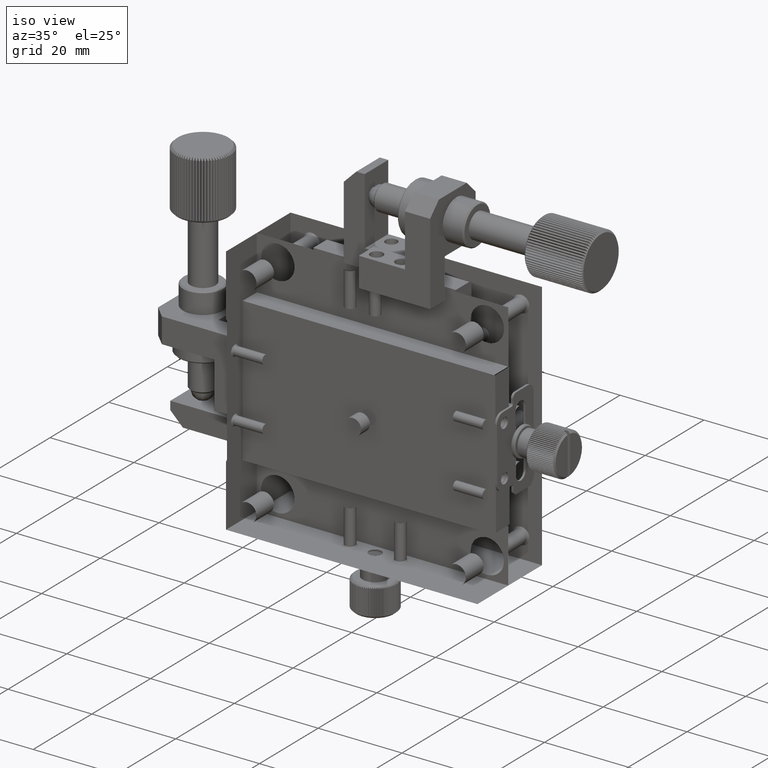
[diagram: clean part render]
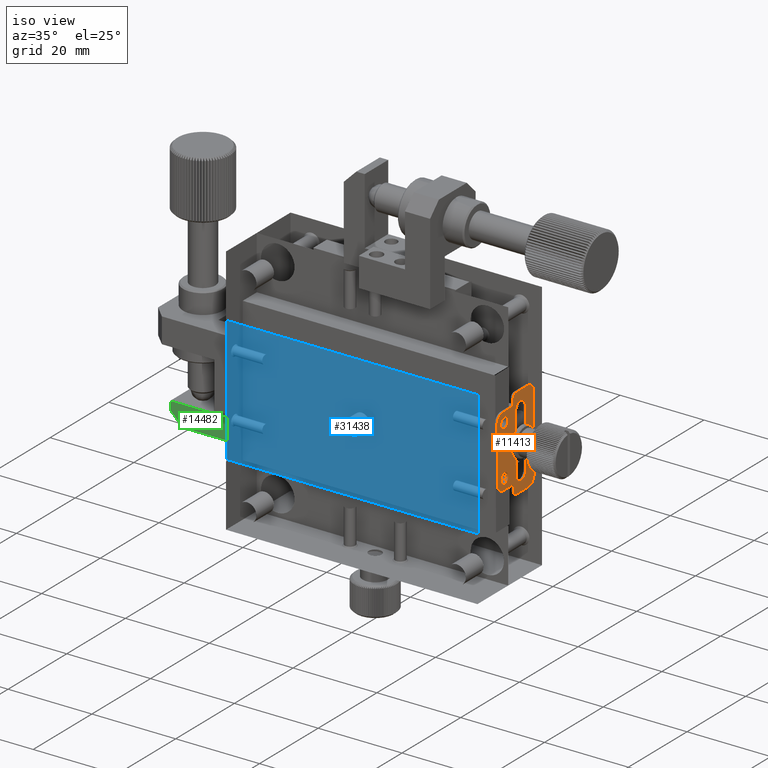
[diagram: same view with three faces highlighted in distinct colors, each labeled with its STEP entity id]
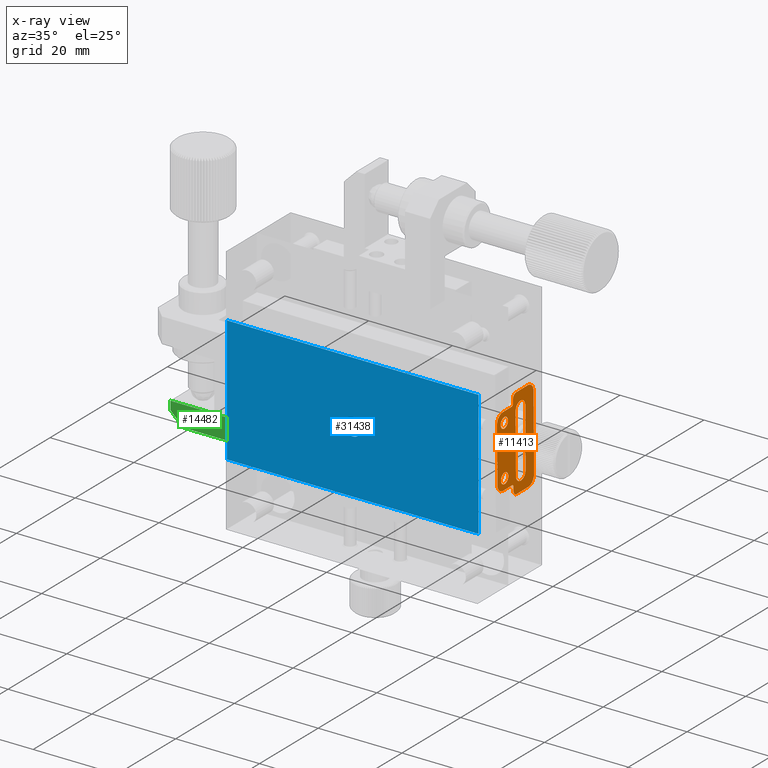
[diagram: x-ray of the same camera — body ghosted, the three highlighted faces saturated]
A machine part, iso view with three faces highlighted in distinct colors.
The next image is the same camera in x-ray (body ghosted, the three faces saturated) — at least one of them is partly hidden behind the body in this view.
Their STEP definitions:

[orange] entity #11413 — the highlighted planar face has unit normal (1, -0, -0).
#90 = ORIENTED_EDGE ( 'NONE', *, *, #26227, .T. ) ;
#845 = DIRECTION ( 'NONE',  ( -1.000000000000000000, 1.816457059502865231E-17, 6.808534262941342127E-17 ) ) ;
#1749 = CARTESIAN_POINT ( 'NONE',  ( 30.50000000000000355, 12.58622128862589484, -9.965078804525512979 ) ) ;
#2050 = CIRCLE ( 'NONE', #32281, 0.4999999999998339106 ) ;
#2134 = DIRECTION ( 'NONE',  ( 0.000000000000000000, 0.008637048863370190913, -0.9999626999978207254 ) ) ;
#2270 = VERTEX_POINT ( 'NONE', #34601 ) ;
#2402 = CARTESIAN_POINT ( 'NONE',  ( 30.50000000000000711, 12.41031573556359469, -6.966486091467329445 ) ) ;
#2682 = DIRECTION ( 'NONE',  ( 0.000000000000000000, -0.9999626999978207254, -0.008637048863370194382 ) ) ;
#2855 = FACE_BOUND ( 'NONE', #9845, .T. ) ;
#3090 = DIRECTION ( 'NONE',  ( 1.000000000000000000, -1.816457059502865231E-17, -6.808534262941342127E-17 ) ) ;
#3307 = ORIENTED_EDGE ( 'NONE', *, *, #37519, .T. ) ;
#3731 = AXIS2_PLACEMENT_3D ( 'NONE', #11486, #845, #36667 ) ;
#4194 = CARTESIAN_POINT ( 'NONE',  ( 30.50000000000000711, 16.59470913748010901, -10.93049330907007644 ) ) ;
#4420 = DIRECTION ( 'NONE',  ( -1.000000000000000000, 1.816457059502865231E-17, 6.808534262941342127E-17 ) ) ;
#4422 = CARTESIAN_POINT ( 'NONE',  ( 30.50000000000000711, 16.42196816021226624, 9.068760690886023212 ) ) ;
#4445 = VECTOR ( 'NONE', #2682, 1000.000000000000114 ) ;
#5302 = ORIENTED_EDGE ( 'NONE', *, *, #36138, .T. ) ;
#5486 = ORIENTED_EDGE ( 'NONE', *, *, #30139, .T. ) ;
#5492 = DIRECTION ( 'NONE',  ( 0.000000000000000000, 0.008637048863370251628, -0.9999626999978207254 ) ) ;
#5732 = CARTESIAN_POINT ( 'NONE',  ( 30.50000000000000711, 11.42215466022337367, 9.025575446569840565 ) ) ;
#5819 = VERTEX_POINT ( 'NONE', #30817 ) ;
#6158 = AXIS2_PLACEMENT_3D ( 'NONE', #1749, #25548, #7997 ) ;
#6611 = LINE ( 'NONE', #31348, #32526 ) ;
#7997 = DIRECTION ( 'NONE',  ( 0.000000000000000000, 1.734723475976420355E-15, 1.000000000000000000 ) ) ;
#8345 = DIRECTION ( 'NONE',  ( 0.000000000000000000, -0.008637048863370230811, 0.9999626999978207254 ) ) ;
#8366 = VERTEX_POINT ( 'NONE', #28128 ) ;
#8460 = AXIS2_PLACEMENT_3D ( 'NONE', #15774, #18548, #43718 ) ;
#8674 = VERTEX_POINT ( 'NONE', #12190 ) ;
#8739 = CARTESIAN_POINT ( 'NONE',  ( 30.50000000000000711, 8.551822293180237011, -5.999776199987381098 ) ) ;
#8886 = CIRCLE ( 'NONE', #39129, 2.000000000000334843 ) ;
#9090 = DIRECTION ( 'NONE',  ( -6.808534262941342127E-17, 0.000000000000000000, -1.000000000000000000 ) ) ;
#9286 = CARTESIAN_POINT ( 'NONE',  ( 30.50000000000000711, 15.58927396441171531, 7.061493629064314881 ) ) ;
#9530 = EDGE_CURVE ( 'NONE', #24378, #16242, #23838, .T. ) ;
#9845 = EDGE_LOOP ( 'NONE', ( #45123 ) ) ;
#9929 = EDGE_CURVE ( 'NONE', #16242, #23678, #32663, .T. ) ;
#10965 = CARTESIAN_POINT ( 'NONE',  ( 30.50000000000000711, 16.40469406248552175, 11.06868609088200017 ) ) ;
#11413 = ADVANCED_FACE ( 'NONE', ( #2855, #30803, #41205, #30123 ), #26642, .T. ) ;
#11453 = AXIS2_PLACEMENT_3D ( 'NONE', #28910, #4420, #19200 ) ;
#11478 = CIRCLE ( 'NONE', #26209, 1.999999999999890754 ) ;
#11486 = CARTESIAN_POINT ( 'NONE',  ( 30.50000000000000711, 8.448177706819791410, 5.999776199986929015 ) ) ;
#11836 = LINE ( 'NONE', #18295, #14589 ) ;
#12178 = CARTESIAN_POINT ( 'NONE',  ( 30.50000000000000711, 12.59485833748904682, -10.96504150452355653 ) ) ;
#12190 = CARTESIAN_POINT ( 'NONE',  ( 30.50000000000000711, 15.71019264555625838, -6.937983830218209746 ) ) ;
#12234 = ORIENTED_EDGE ( 'NONE', *, *, #20041, .T. ) ;
#12560 = EDGE_CURVE ( 'NONE', #35962, #5819, #37265, .T. ) ;
#12799 = CARTESIAN_POINT ( 'NONE',  ( 30.50000000000000711, 11.07764018976573794, -8.978071677822855534 ) ) ;
#12850 = CARTESIAN_POINT ( 'NONE',  ( 30.50000000000000711, 10.92649183465631602, 8.521275572138971910 ) ) ;
#12931 = DIRECTION ( 'NONE',  ( -1.000000000000000000, 1.816457059502865231E-17, 6.808534262941342127E-17 ) ) ;
#13658 = CIRCLE ( 'NONE', #11453, 1.649999999999929301 ) ;
#13825 = VERTEX_POINT ( 'NONE', #42337 ) ;
#14037 = CARTESIAN_POINT ( 'NONE',  ( 30.50000000000000711, 10.92649183465631602, 8.521275572138970134 ) ) ;
#14051 = VECTOR ( 'NONE', #16502, 1000.000000000000114 ) ;
#14127 = EDGE_CURVE ( 'NONE', #5819, #13825, #32295, .T. ) ;
#14589 = VECTOR ( 'NONE', #8345, 1000.000000000000114 ) ;
#14689 = ORIENTED_EDGE ( 'NONE', *, *, #40834, .T. ) ;
#14846 = CARTESIAN_POINT ( 'NONE',  ( 30.50000000000000711, 7.943877832389478755, 6.495439025553325862 ) ) ;
#15021 = DIRECTION ( 'NONE',  ( -1.000000000000000000, 1.816457059502865231E-17, 6.808534262941342127E-17 ) ) ;
#15030 = VECTOR ( 'NONE', #15562, 1000.000000000000114 ) ;
#15176 = CARTESIAN_POINT ( 'NONE',  ( 30.50000000000000711, 15.58927396441171531, 7.061493629064314881 ) ) ;
#15211 = EDGE_CURVE ( 'NONE', #40424, #41814, #44101, .T. ) ;
#15275 = EDGE_CURVE ( 'NONE', #20610, #8674, #30534, .T. ) ;
#15382 = CARTESIAN_POINT ( 'NONE',  ( 30.50000000000000711, 5.943952432393946772, 6.478164927826585817 ) ) ;
#15469 = LINE ( 'NONE', #36738, #16282 ) ;
#15562 = DIRECTION ( 'NONE',  ( 0.000000000000000000, 0.9999626999978207254, 0.008637048863370518775 ) ) ;
#15774 = CARTESIAN_POINT ( 'NONE',  ( 30.50000000000000711, 8.056159467613735359, -6.504076074418245312 ) ) ;
#16242 = VERTEX_POINT ( 'NONE', #12178 ) ;
#16282 = VECTOR ( 'NONE', #22157, 1000.000000000000114 ) ;
#16502 = DIRECTION ( 'NONE',  ( 0.000000000000000000, -0.008637048863370314078, 0.9999626999978207254 ) ) ;
#16601 = ORIENTED_EDGE ( 'NONE', *, *, #32642, .T. ) ;
#16999 = AXIS2_PLACEMENT_3D ( 'NONE', #32814, #15021, #19162 ) ;
#17098 = VERTEX_POINT ( 'NONE', #14037 ) ;
#17262 = CARTESIAN_POINT ( 'NONE',  ( 30.50000000000000711, 12.28939705441904984, 7.032991367815193406 ) ) ;
#17927 = DIRECTION ( 'NONE',  ( 0.000000000000000000, 0.000000000000000000, 1.000000000000000000 ) ) ;
#18295 = CARTESIAN_POINT ( 'NONE',  ( 30.50000000000000711, 18.57736043974890450, -8.913293811347806184 ) ) ;
#18487 = ORIENTED_EDGE ( 'NONE', *, *, #36013, .T. ) ;
#18548 = DIRECTION ( 'NONE',  ( 1.000000000000000000, -1.816457059502865231E-17, -6.808534262941342127E-17 ) ) ;
#18830 = VERTEX_POINT ( 'NONE', #36997 ) ;
#19162 = DIRECTION ( 'NONE',  ( 0.000000000000000000, 0.000000000000000000, 1.000000000000000000 ) ) ;
#19200 = DIRECTION ( 'NONE',  ( 0.000000000000000000, 0.000000000000000000, 1.000000000000000000 ) ) ;
#19304 = CARTESIAN_POINT ( 'NONE',  ( 30.50000000000000711, 11.57762153976448261, -8.973753153391170301 ) ) ;
#20041 = EDGE_CURVE ( 'NONE', #41814, #35962, #40620, .T. ) ;
#20444 = EDGE_LOOP ( 'NONE', ( #42812, #27244, #43902, #28778, #21122, #28211, #45199, #42252, #21217, #14689, #31384, #40173, #90, #5302, #36931, #12234 ) ) ;
#20610 = VERTEX_POINT ( 'NONE', #15176 ) ;
#20648 = DIRECTION ( 'NONE',  ( 0.000000000000000000, 0.000000000000000000, 1.000000000000000000 ) ) ;
#20947 = DIRECTION ( 'NONE',  ( 0.000000000000000000, -0.9999626999978207254, -0.008637048863369642740 ) ) ;
#21122 = ORIENTED_EDGE ( 'NONE', *, *, #9530, .T. ) ;
#21217 = ORIENTED_EDGE ( 'NONE', *, *, #44740, .T. ) ;
#22157 = DIRECTION ( 'NONE',  ( 0.000000000000000000, 0.008637048863371823287, -0.9999626999978207254 ) ) ;
#22322 = CARTESIAN_POINT ( 'NONE',  ( 30.50000000000000711, 6.056234067617759287, -6.521350172144989799 ) ) ;
#23244 = AXIS2_PLACEMENT_3D ( 'NONE', #12799, #40750, #9090 ) ;
#23272 = CARTESIAN_POINT ( 'NONE',  ( 30.50000000000000711, 12.41348031135760444, 10.03417519543092062 ) ) ;
#23678 = VERTEX_POINT ( 'NONE', #4194 ) ;
#23838 = CIRCLE ( 'NONE', #6158, 1.000000000000222933 ) ;
#24297 = EDGE_CURVE ( 'NONE', #23678, #18830, #11478, .T. ) ;
#24378 = VERTEX_POINT ( 'NONE', #36862 ) ;
#25548 = DIRECTION ( 'NONE',  ( 1.000000000000000000, -1.816457059502865231E-17, -6.808534262941342127E-17 ) ) ;
#25677 = DIRECTION ( 'NONE',  ( 1.000000000000000000, -1.816457059502865231E-17, -6.808534262941342127E-17 ) ) ;
#25820 = CARTESIAN_POINT ( 'NONE',  ( 30.50000000000000711, 7.926603734662739598, 8.495364425548858733 ) ) ;
#25991 = VERTEX_POINT ( 'NONE', #29335 ) ;
#26209 = AXIS2_PLACEMENT_3D ( 'NONE', #35043, #41955, #17927 ) ;
#26227 = EDGE_CURVE ( 'NONE', #38256, #17098, #2050, .T. ) ;
#26526 = EDGE_CURVE ( 'NONE', #37920, #25991, #42630, .T. ) ;
#26642 = PLANE ( 'NONE',  #23244 ) ;
#27004 = DIRECTION ( 'NONE',  ( 0.000000000000000000, 0.000000000000000000, 1.000000000000000000 ) ) ;
#27079 = VECTOR ( 'NONE', #28134, 1000.000000000000114 ) ;
#27141 = VECTOR ( 'NONE', #2134, 1000.000000000000114 ) ;
#27244 = ORIENTED_EDGE ( 'NONE', *, *, #14127, .T. ) ;
#27398 = VECTOR ( 'NONE', #32959, 1000.000000000000114 ) ;
#28128 = CARTESIAN_POINT ( 'NONE',  ( 30.50000000000000711, 11.57762153976448261, -8.973753153391172077 ) ) ;
#28134 = DIRECTION ( 'NONE',  ( 0.000000000000000000, 0.9999626999978207254, 0.008637048863370194382 ) ) ;
#28211 = ORIENTED_EDGE ( 'NONE', *, *, #9929, .T. ) ;
#28568 = CIRCLE ( 'NONE', #41858, 1.649999999999930189 ) ;
#28778 = ORIENTED_EDGE ( 'NONE', *, *, #38485, .T. ) ;
#28910 = CARTESIAN_POINT ( 'NONE',  ( 30.50000000000000711, 14.06025419055992920, -6.952234960842769596 ) ) ;
#28932 = DIRECTION ( 'NONE',  ( 1.000000000000000000, -1.816457059502865231E-17, -6.808534262941342127E-17 ) ) ;
#29335 = CARTESIAN_POINT ( 'NONE',  ( 30.50000000000000711, 11.41351761136000498, 10.02553814656755016 ) ) ;
#29357 = AXIS2_PLACEMENT_3D ( 'NONE', #14846, #28932, #43014 ) ;
#29527 = DIRECTION ( 'NONE',  ( -1.000000000000000000, 1.816457059502865231E-17, 6.808534262941342127E-17 ) ) ;
#29595 = ORIENTED_EDGE ( 'NONE', *, *, #15275, .T. ) ;
#30123 = FACE_BOUND ( 'NONE', #42261, .T. ) ;
#30139 = EDGE_CURVE ( 'NONE', #8674, #32764, #13658, .T. ) ;
#30534 = LINE ( 'NONE', #9286, #27141 ) ;
#30756 = VECTOR ( 'NONE', #5492, 1000.000000000000114 ) ;
#30803 = FACE_BOUND ( 'NONE', #31398, .T. ) ;
#30817 = CARTESIAN_POINT ( 'NONE',  ( 30.50000000000000711, 8.073433565340478069, -8.504001474414222272 ) ) ;
#30831 = AXIS2_PLACEMENT_3D ( 'NONE', #23272, #3090, #20648 ) ;
#31281 = EDGE_CURVE ( 'NONE', #36936, #36936, #35972, .T. ) ;
#31348 = CARTESIAN_POINT ( 'NONE',  ( 30.50000000000000711, 16.40469406248552175, 11.06868609088200017 ) ) ;
#31384 = ORIENTED_EDGE ( 'NONE', *, *, #26526, .T. ) ;
#31398 = EDGE_LOOP ( 'NONE', ( #29595, #5486, #3307, #16601 ) ) ;
#31468 = VERTEX_POINT ( 'NONE', #17262 ) ;
#31593 = DIRECTION ( 'NONE',  ( 0.000000000000000000, 0.000000000000000000, 1.000000000000000000 ) ) ;
#31714 = VERTEX_POINT ( 'NONE', #38007 ) ;
#31813 = CARTESIAN_POINT ( 'NONE',  ( 30.50000000000000711, 13.93933550941538613, 7.047242498439754144 ) ) ;
#32281 = AXIS2_PLACEMENT_3D ( 'NONE', #44564, #12931, #27004 ) ;
#32295 = LINE ( 'NONE', #36000, #27079 ) ;
#32526 = VECTOR ( 'NONE', #20947, 1000.000000000000114 ) ;
#32642 = EDGE_CURVE ( 'NONE', #31468, #20610, #28568, .T. ) ;
#32663 = LINE ( 'NONE', #32900, #15030 ) ;
#32764 = VERTEX_POINT ( 'NONE', #36200 ) ;
#32814 = CARTESIAN_POINT ( 'NONE',  ( 30.50000000000000711, 11.07764018976573794, -8.978071677822855534 ) ) ;
#32900 = CARTESIAN_POINT ( 'NONE',  ( 30.50000000000000711, 12.59485833748882477, -10.96504150452355830 ) ) ;
#32959 = DIRECTION ( 'NONE',  ( 0.000000000000000000, 0.008637048863371089499, -0.9999626999978207254 ) ) ;
#33230 = DIRECTION ( 'NONE',  ( 0.000000000000000000, 0.000000000000000000, 1.000000000000000000 ) ) ;
#33544 = EDGE_CURVE ( 'NONE', #18830, #31714, #11836, .T. ) ;
#33653 = LINE ( 'NONE', #12850, #4445 ) ;
#34601 = CARTESIAN_POINT ( 'NONE',  ( 30.50000000000000711, 8.448177706819791410, 7.249776199987568504 ) ) ;
#35043 = CARTESIAN_POINT ( 'NONE',  ( 30.50000000000000711, 16.57743503975337163, -8.930567909074543564 ) ) ;
#35435 = CIRCLE ( 'NONE', #16999, 0.4999999999998339106 ) ;
#35780 = EDGE_CURVE ( 'NONE', #13825, #8366, #35435, .T. ) ;
#35962 = VERTEX_POINT ( 'NONE', #22322 ) ;
#35972 = CIRCLE ( 'NONE', #41860, 1.249999999999752198 ) ;
#36000 = CARTESIAN_POINT ( 'NONE',  ( 30.50000000000000711, 8.073433565340478069, -8.504001474414222272 ) ) ;
#36013 = EDGE_CURVE ( 'NONE', #2270, #2270, #36962, .T. ) ;
#36138 = EDGE_CURVE ( 'NONE', #17098, #40424, #33653, .T. ) ;
#36200 = CARTESIAN_POINT ( 'NONE',  ( 30.50000000000000711, 12.41031573556359469, -6.966486091467330333 ) ) ;
#36315 = DIRECTION ( 'NONE',  ( 0.000000000000000000, 0.000000000000000000, 1.000000000000000000 ) ) ;
#36667 = DIRECTION ( 'NONE',  ( 0.000000000000000000, 0.000000000000000000, 1.000000000000000000 ) ) ;
#36714 = CARTESIAN_POINT ( 'NONE',  ( 30.50000000000000711, 8.551822293180237011, -4.749776199987628900 ) ) ;
#36738 = CARTESIAN_POINT ( 'NONE',  ( 30.50000000000000711, 11.41351761136000320, 10.02553814656755193 ) ) ;
#36862 = CARTESIAN_POINT ( 'NONE',  ( 30.50000000000000711, 11.58625858862785485, -9.973715853389107266 ) ) ;
#36931 = ORIENTED_EDGE ( 'NONE', *, *, #15211, .T. ) ;
#36936 = VERTEX_POINT ( 'NONE', #36714 ) ;
#36962 = CIRCLE ( 'NONE', #3731, 1.250000000000639488 ) ;
#36997 = CARTESIAN_POINT ( 'NONE',  ( 30.50000000000000711, 18.57736043974890450, -8.913293811347804407 ) ) ;
#37154 = CARTESIAN_POINT ( 'NONE',  ( 30.50000000000000711, 5.943952432393946772, 6.478164927826585817 ) ) ;
#37265 = CIRCLE ( 'NONE', #8460, 2.000000000000334843 ) ;
#37519 = EDGE_CURVE ( 'NONE', #32764, #31468, #44206, .T. ) ;
#37920 = VERTEX_POINT ( 'NONE', #42933 ) ;
#38007 = CARTESIAN_POINT ( 'NONE',  ( 30.50000000000000711, 18.42189356020824320, 9.086034788612769475 ) ) ;
#38256 = VERTEX_POINT ( 'NONE', #5732 ) ;
#38485 = EDGE_CURVE ( 'NONE', #8366, #24378, #43565, .T. ) ;
#39129 = AXIS2_PLACEMENT_3D ( 'NONE', #4422, #25677, #36315 ) ;
#40173 = ORIENTED_EDGE ( 'NONE', *, *, #45069, .T. ) ;
#40424 = VERTEX_POINT ( 'NONE', #25820 ) ;
#40620 = LINE ( 'NONE', #37154, #30756 ) ;
#40750 = DIRECTION ( 'NONE',  ( 1.000000000000000000, -1.816457059502865539E-17, -6.808534262941342127E-17 ) ) ;
#40834 = EDGE_CURVE ( 'NONE', #43150, #37920, #6611, .T. ) ;
#41205 = FACE_OUTER_BOUND ( 'NONE', #20444, .T. ) ;
#41814 = VERTEX_POINT ( 'NONE', #15382 ) ;
#41858 = AXIS2_PLACEMENT_3D ( 'NONE', #31813, #42660, #31593 ) ;
#41860 = AXIS2_PLACEMENT_3D ( 'NONE', #8739, #29527, #33230 ) ;
#41955 = DIRECTION ( 'NONE',  ( 1.000000000000000000, -1.816457059502865231E-17, -6.808534262941342127E-17 ) ) ;
#42252 = ORIENTED_EDGE ( 'NONE', *, *, #33544, .T. ) ;
#42261 = EDGE_LOOP ( 'NONE', ( #18487 ) ) ;
#42337 = CARTESIAN_POINT ( 'NONE',  ( 30.50000000000000711, 11.07332166533405626, -8.478090327824110872 ) ) ;
#42630 = CIRCLE ( 'NONE', #30831, 0.9999999999997788436 ) ;
#42660 = DIRECTION ( 'NONE',  ( -1.000000000000000000, 1.816457059502865231E-17, 6.808534262941342127E-17 ) ) ;
#42812 = ORIENTED_EDGE ( 'NONE', *, *, #12560, .T. ) ;
#42933 = CARTESIAN_POINT ( 'NONE',  ( 30.50000000000000711, 12.40484326249423574, 11.03413789542852008 ) ) ;
#43014 = DIRECTION ( 'NONE',  ( 0.000000000000000000, 0.000000000000000000, 1.000000000000000000 ) ) ;
#43150 = VERTEX_POINT ( 'NONE', #10965 ) ;
#43565 = LINE ( 'NONE', #19304, #27398 ) ;
#43718 = DIRECTION ( 'NONE',  ( 0.000000000000000000, 0.000000000000000000, 1.000000000000000000 ) ) ;
#43902 = ORIENTED_EDGE ( 'NONE', *, *, #35780, .T. ) ;
#44101 = CIRCLE ( 'NONE', #29357, 1.999999999999892530 ) ;
#44206 = LINE ( 'NONE', #2402, #14051 ) ;
#44564 = CARTESIAN_POINT ( 'NONE',  ( 30.50000000000000711, 10.92217331022463078, 9.021256922137713019 ) ) ;
#44740 = EDGE_CURVE ( 'NONE', #31714, #43150, #8886, .T. ) ;
#45069 = EDGE_CURVE ( 'NONE', #25991, #38256, #15469, .T. ) ;
#45123 = ORIENTED_EDGE ( 'NONE', *, *, #31281, .T. ) ;
#45199 = ORIENTED_EDGE ( 'NONE', *, *, #24297, .T. ) ;

[blue] entity #31438 — the highlighted planar face has unit normal (-0, 1, 0).
#2265 = EDGE_LOOP ( 'NONE', ( #21907, #17222, #30104, #30385 ) ) ;
#4248 = DIRECTION ( 'NONE',  ( -1.000000000000000000, -0.000000000000000000, -0.000000000000000000 ) ) ;
#5429 = VERTEX_POINT ( 'NONE', #7507 ) ;
#6852 = VERTEX_POINT ( 'NONE', #30899 ) ;
#7507 = CARTESIAN_POINT ( 'NONE',  ( 30.00000000000000000, 0.3499999999999995337, -15.00000000000000000 ) ) ;
#8993 = CARTESIAN_POINT ( 'NONE',  ( -30.00000000000000000, 0.3499999999999996447, 30.00000000000000000 ) ) ;
#9818 = LINE ( 'NONE', #30847, #27844 ) ;
#9943 = EDGE_CURVE ( 'NONE', #5429, #33228, #22486, .T. ) ;
#11534 = AXIS2_PLACEMENT_3D ( 'NONE', #35060, #42196, #14240 ) ;
#12361 = CARTESIAN_POINT ( 'NONE',  ( -30.00000000000000000, 0.3499999999999996447, 15.00000000000000355 ) ) ;
#14237 = VECTOR ( 'NONE', #30707, 1000.000000000000000 ) ;
#14240 = DIRECTION ( 'NONE',  ( 0.000000000000000000, -5.421010862427522170E-18, 1.000000000000000000 ) ) ;
#14290 = VECTOR ( 'NONE', #4248, 1000.000000000000000 ) ;
#14476 = FACE_BOUND ( 'NONE', #31060, .T. ) ;
#14700 = PLANE ( 'NONE',  #11534 ) ;
#16735 = DIRECTION ( 'NONE',  ( 0.000000000000000000, 0.000000000000000000, -1.000000000000000000 ) ) ;
#17222 = ORIENTED_EDGE ( 'NONE', *, *, #17665, .T. ) ;
#17665 = EDGE_CURVE ( 'NONE', #29424, #5429, #37535, .T. ) ;
#21907 = ORIENTED_EDGE ( 'NONE', *, *, #32815, .T. ) ;
#22275 = CARTESIAN_POINT ( 'NONE',  ( 0.000000000000000000, 0.3499999999999996447, 0.000000000000000000 ) ) ;
#22337 = VERTEX_POINT ( 'NONE', #12361 ) ;
#22486 = LINE ( 'NONE', #43289, #14290 ) ;
#25099 = FACE_OUTER_BOUND ( 'NONE', #2265, .T. ) ;
#26268 = VECTOR ( 'NONE', #16735, 1000.000000000000000 ) ;
#26917 = DIRECTION ( 'NONE',  ( 1.000000000000000000, 0.000000000000000000, 0.000000000000000000 ) ) ;
#27002 = LINE ( 'NONE', #8993, #14237 ) ;
#27844 = VECTOR ( 'NONE', #26917, 1000.000000000000000 ) ;
#28137 = EDGE_CURVE ( 'NONE', #33228, #22337, #27002, .T. ) ;
#29424 = VERTEX_POINT ( 'NONE', #36426 ) ;
#30104 = ORIENTED_EDGE ( 'NONE', *, *, #9943, .T. ) ;
#30385 = ORIENTED_EDGE ( 'NONE', *, *, #28137, .T. ) ;
#30707 = DIRECTION ( 'NONE',  ( 0.000000000000000000, 0.000000000000000000, 1.000000000000000000 ) ) ;
#30799 = CARTESIAN_POINT ( 'NONE',  ( -30.00000000000000000, 0.3499999999999991451, -15.00000000000000178 ) ) ;
#30847 = CARTESIAN_POINT ( 'NONE',  ( -30.00000000000000000, 0.3499999999999995892, 15.00000000000000355 ) ) ;
#30899 = CARTESIAN_POINT ( 'NONE',  ( 0.000000000000000000, 0.3499999999999996447, -1.999999999999995337 ) ) ;
#31060 = EDGE_LOOP ( 'NONE', ( #40686 ) ) ;
#31438 = ADVANCED_FACE ( 'NONE', ( #25099, #14476 ), #14700, .T. ) ;
#32815 = EDGE_CURVE ( 'NONE', #22337, #29424, #9818, .T. ) ;
#33228 = VERTEX_POINT ( 'NONE', #30799 ) ;
#34710 = AXIS2_PLACEMENT_3D ( 'NONE', #22275, #36615, #36382 ) ;
#35060 = CARTESIAN_POINT ( 'NONE',  ( -30.00000000000000000, 0.3499999999999997002, -15.00000000000000000 ) ) ;
#36382 = DIRECTION ( 'NONE',  ( 0.000000000000000000, 0.000000000000000000, -1.000000000000000000 ) ) ;
#36426 = CARTESIAN_POINT ( 'NONE',  ( 30.00000000000000000, 0.3499999999999990341, 15.00000000000000355 ) ) ;
#36615 = DIRECTION ( 'NONE',  ( -0.000000000000000000, -1.000000000000000000, -0.000000000000000000 ) ) ;
#36920 = CIRCLE ( 'NONE', #34710, 1.999999999999995337 ) ;
#37460 = EDGE_CURVE ( 'NONE', #6852, #6852, #36920, .T. ) ;
#37535 = LINE ( 'NONE', #45116, #26268 ) ;
#40686 = ORIENTED_EDGE ( 'NONE', *, *, #37460, .T. ) ;
#42196 = DIRECTION ( 'NONE',  ( -0.000000000000000000, 1.000000000000000000, 5.421010862427522170E-18 ) ) ;
#43289 = CARTESIAN_POINT ( 'NONE',  ( -30.00000000000000000, 0.3499999999999997002, -15.00000000000000000 ) ) ;
#45116 = CARTESIAN_POINT ( 'NONE',  ( 30.00000000000000000, 0.3499999999999996447, -30.00000000000000000 ) ) ;

[green] entity #14482 — the highlighted planar face has unit normal (0, -1, 0).
#223 = CARTESIAN_POINT ( 'NONE',  ( -30.50000000000000355, 11.00000000000001066, -16.99999999999998934 ) ) ;
#2470 = DIRECTION ( 'NONE',  ( 1.973643060532964782E-16, -1.000000000000000000, 1.387778780781446908E-17 ) ) ;
#2684 = DIRECTION ( 'NONE',  ( -2.738979960244201244E-33, 1.387778780781446908E-17, 1.000000000000000000 ) ) ;
#5647 = DIRECTION ( 'NONE',  ( 1.000000000000000000, -4.289255674629583138E-35, -3.090734441273371398E-18 ) ) ;
#6623 = EDGE_CURVE ( 'NONE', #31643, #38046, #12377, .T. ) ;
#8361 = EDGE_CURVE ( 'NONE', #28269, #24121, #27910, .T. ) ;
#8664 = CARTESIAN_POINT ( 'NONE',  ( -51.00000000000000711, 11.00000000000001066, -16.99999999999998934 ) ) ;
#8919 = LINE ( 'NONE', #19546, #36510 ) ;
#9100 = DIRECTION ( 'NONE',  ( -3.090734441273371783E-18, -8.692069787626126726E-35, -1.000000000000000000 ) ) ;
#9162 = CARTESIAN_POINT ( 'NONE',  ( -30.50000000000000355, 11.00000000000001066, -0.9999999999999870104 ) ) ;
#9408 = ORIENTED_EDGE ( 'NONE', *, *, #9434, .F. ) ;
#9434 = EDGE_CURVE ( 'NONE', #18851, #24121, #37426, .T. ) ;
#9563 = DIRECTION ( 'NONE',  ( 0.7071067811865475727, 0.000000000000000000, -0.7071067811865474617 ) ) ;
#10888 = EDGE_CURVE ( 'NONE', #38046, #15154, #8919, .T. ) ;
#12377 = LINE ( 'NONE', #8664, #19992 ) ;
#13109 = LINE ( 'NONE', #16121, #45387 ) ;
#13599 = DIRECTION ( 'NONE',  ( -1.000000000000000000, 4.289255674629583138E-35, 3.090734441273371398E-18 ) ) ;
#13743 = EDGE_CURVE ( 'NONE', #18851, #31643, #44209, .T. ) ;
#13767 = EDGE_CURVE ( 'NONE', #18482, #28269, #34518, .T. ) ;
#14482 = ADVANCED_FACE ( 'NONE', ( #31096 ), #16565, .T. ) ;
#15154 = VERTEX_POINT ( 'NONE', #33325 ) ;
#15659 = VECTOR ( 'NONE', #13599, 1000.000000000000000 ) ;
#15996 = ORIENTED_EDGE ( 'NONE', *, *, #10888, .T. ) ;
#16121 = CARTESIAN_POINT ( 'NONE',  ( -51.00000000000000711, 11.00000000000001066, -0.9999999999999867883 ) ) ;
#16508 = CARTESIAN_POINT ( 'NONE',  ( -51.00000000000000711, 11.00000000000001066, -13.99999999999998757 ) ) ;
#16565 = PLANE ( 'NONE',  #23406 ) ;
#17751 = ORIENTED_EDGE ( 'NONE', *, *, #8361, .T. ) ;
#18112 = ORIENTED_EDGE ( 'NONE', *, *, #13767, .T. ) ;
#18482 = VERTEX_POINT ( 'NONE', #33589 ) ;
#18851 = VERTEX_POINT ( 'NONE', #26122 ) ;
#19546 = CARTESIAN_POINT ( 'NONE',  ( -30.50000000000000355, 11.00000000000001066, -0.9999999999999870104 ) ) ;
#19992 = VECTOR ( 'NONE', #5647, 1000.000000000000000 ) ;
#23094 = DIRECTION ( 'NONE',  ( 3.090734441273371783E-18, 8.692069787626126726E-35, 1.000000000000000000 ) ) ;
#23235 = CARTESIAN_POINT ( 'NONE',  ( -35.00000000000000000, 11.00000000000001066, -11.99999999999998934 ) ) ;
#23406 = AXIS2_PLACEMENT_3D ( 'NONE', #9162, #2470, #41275 ) ;
#24121 = VERTEX_POINT ( 'NONE', #40606 ) ;
#24203 = EDGE_CURVE ( 'NONE', #18482, #15154, #13109, .T. ) ;
#24980 = EDGE_LOOP ( 'NONE', ( #17751, #9408, #24994, #34878, #15996, #27433, #18112 ) ) ;
#24994 = ORIENTED_EDGE ( 'NONE', *, *, #13743, .T. ) ;
#26122 = CARTESIAN_POINT ( 'NONE',  ( -51.00000000000000711, 11.00000000000001066, -13.99999999999998757 ) ) ;
#27177 = DIRECTION ( 'NONE',  ( 1.000000000000000000, -4.289255674629583138E-35, -3.090734441273371398E-18 ) ) ;
#27433 = ORIENTED_EDGE ( 'NONE', *, *, #24203, .F. ) ;
#27442 = CARTESIAN_POINT ( 'NONE',  ( -51.00000000000000711, 11.00000000000001066, -11.99999999999998934 ) ) ;
#27910 = LINE ( 'NONE', #27442, #15659 ) ;
#28269 = VERTEX_POINT ( 'NONE', #23235 ) ;
#30712 = CARTESIAN_POINT ( 'NONE',  ( -51.00000000000000711, 11.00000000000001066, -0.9999999999999870104 ) ) ;
#31041 = CARTESIAN_POINT ( 'NONE',  ( -35.00000000000000000, 11.00000000000001066, -0.9999999999999870104 ) ) ;
#31096 = FACE_OUTER_BOUND ( 'NONE', #24980, .T. ) ;
#31643 = VERTEX_POINT ( 'NONE', #41241 ) ;
#33325 = CARTESIAN_POINT ( 'NONE',  ( -30.50000000000000355, 11.00000000000001066, -0.9999999999999870104 ) ) ;
#33589 = CARTESIAN_POINT ( 'NONE',  ( -35.00000000000000000, 11.00000000000001066, -0.9999999999999870104 ) ) ;
#34518 = LINE ( 'NONE', #31041, #41741 ) ;
#34878 = ORIENTED_EDGE ( 'NONE', *, *, #6623, .T. ) ;
#36510 = VECTOR ( 'NONE', #2684, 1000.000000000000000 ) ;
#37426 = LINE ( 'NONE', #30712, #37864 ) ;
#37864 = VECTOR ( 'NONE', #23094, 1000.000000000000000 ) ;
#38046 = VERTEX_POINT ( 'NONE', #223 ) ;
#40259 = VECTOR ( 'NONE', #9563, 1000.000000000000000 ) ;
#40606 = CARTESIAN_POINT ( 'NONE',  ( -51.00000000000000711, 11.00000000000001066, -11.99999999999998934 ) ) ;
#41241 = CARTESIAN_POINT ( 'NONE',  ( -48.00000000000000000, 11.00000000000001066, -16.99999999999999289 ) ) ;
#41275 = DIRECTION ( 'NONE',  ( 1.000000000000000000, 1.973643060532964782E-16, 0.000000000000000000 ) ) ;
#41741 = VECTOR ( 'NONE', #9100, 1000.000000000000000 ) ;
#44209 = LINE ( 'NONE', #16508, #40259 ) ;
#45387 = VECTOR ( 'NONE', #27177, 1000.000000000000000 ) ;